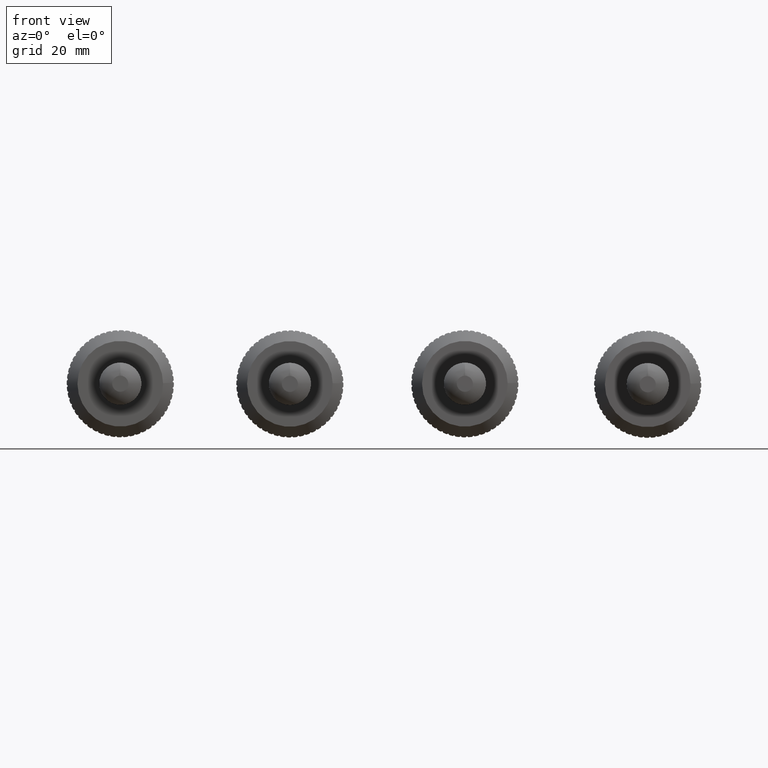
[diagram: clean part render]
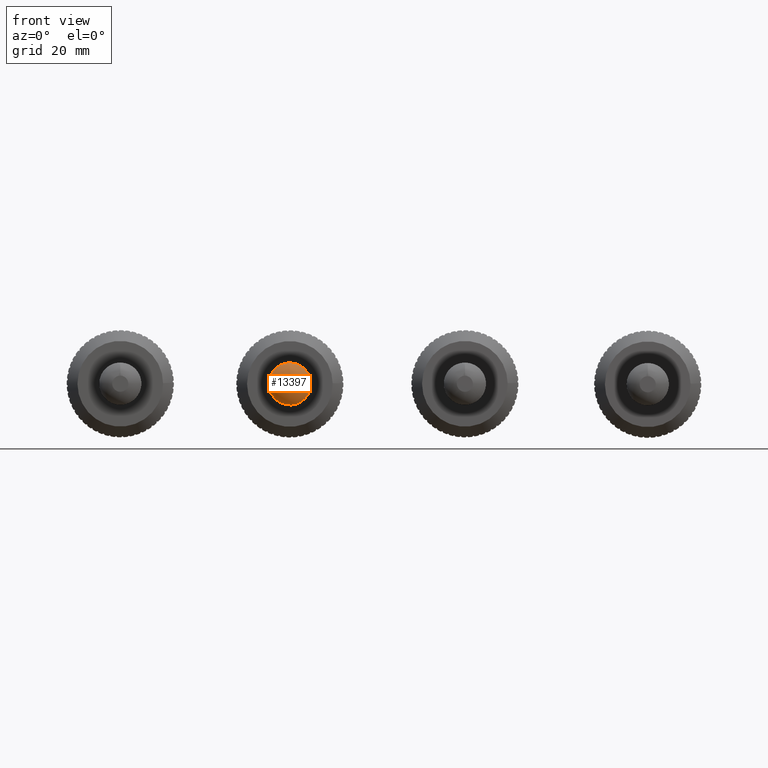
[diagram: same view with one face highlighted and labeled with its STEP entity id]
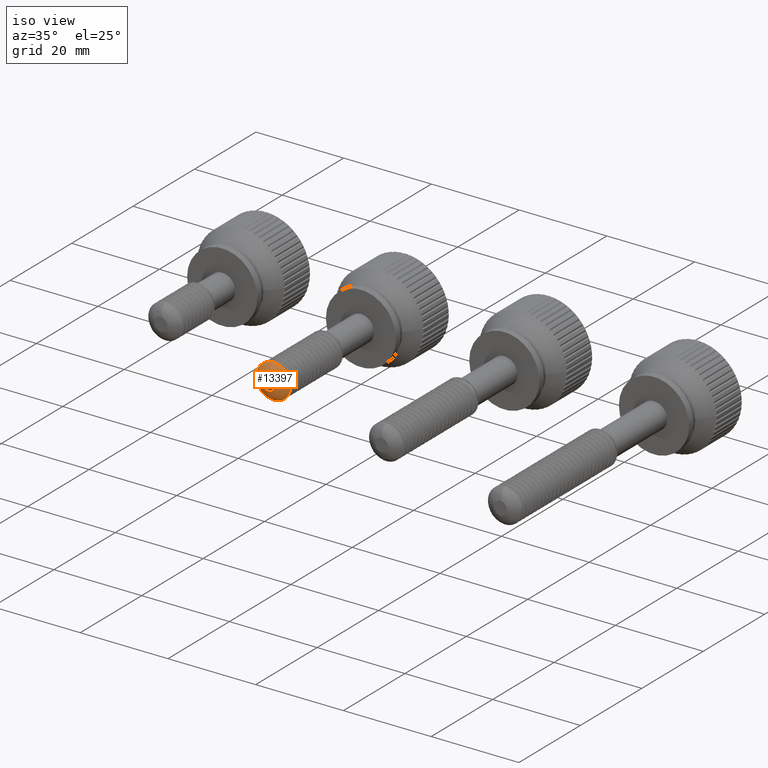
[diagram: same view with one face highlighted and labeled with its STEP entity id]
A machine part, front view. The second image highlights one B-rep face of the part: STEP entity #13397.
A second angle (iso view) of the same face is appended — the face is thin or edge-on in the first view.
In plain terms, the highlighted face is a freeform B-spline surface patch.
Its self-contained STEP definition (entity closure, byte-faithful):
#51=(
BOUNDED_SURFACE()
B_SPLINE_SURFACE(2,2,((#30880,#30881,#30882,#30883,#30884,#30885,#30886,
#30887,#30888),(#30889,#30890,#30891,#30892,#30893,#30894,#30895,#30896,
#30897),(#30898,#30899,#30900,#30901,#30902,#30903,#30904,#30905,#30906)),
 .UNSPECIFIED.,.F.,.T.,.F.)
B_SPLINE_SURFACE_WITH_KNOTS((3,3),(3,2,2,2,3),(0.424521424949027,1.57079632679493),
(-3.14159265358979,-1.5707963267949,0.,1.5707963267949,3.14159265358979),
 .UNSPECIFIED.)
GEOMETRIC_REPRESENTATION_ITEM()
RATIONAL_B_SPLINE_SURFACE(((1.,0.707106781186548,1.,0.707106781186548,1.,
0.707106781186548,1.,0.707106781186548,1.),(0.84020376520645,0.59411377995595,
0.84020376520645,0.59411377995595,0.84020376520645,0.59411377995595,0.84020376520645,
0.59411377995595,0.84020376520645),(1.,0.707106781186548,1.,0.707106781186548,
1.,0.707106781186548,1.,0.707106781186548,1.)))
REPRESENTATION_ITEM('')
SURFACE()
);
#1759=(
BOUNDED_CURVE()
B_SPLINE_CURVE(2,(#30908,#30909,#30910),.UNSPECIFIED.,.F.,.F.)
B_SPLINE_CURVE_WITH_KNOTS((3,3),(0.424521424949027,1.57079632679493),
 .UNSPECIFIED.)
CURVE()
GEOMETRIC_REPRESENTATION_ITEM()
RATIONAL_B_SPLINE_CURVE((1.,0.84020376520645,1.))
REPRESENTATION_ITEM('')
);
#2961=FACE_OUTER_BOUND('',#3661,.T.);
#3661=EDGE_LOOP('',(#10565,#10566,#10567,#10568,#10569,#10570,#10571));
#4145=CIRCLE('',#14041,3.933);
#4148=CIRCLE('',#14046,3.933);
#4149=CIRCLE('',#14047,3.933);
#4260=CIRCLE('',#14320,1.50000000000001);
#4584=B_SPLINE_CURVE_WITH_KNOTS('',3,(#29068,#29069,#29070,#29071),
 .UNSPECIFIED.,.F.,.F.,(4,4),(-0.0802997055663614,0.),.UNSPECIFIED.);
#5124=VERTEX_POINT('',#23252);
#5125=VERTEX_POINT('',#23269);
#5157=VERTEX_POINT('',#28622);
#5158=VERTEX_POINT('',#28623);
#5478=VERTEX_POINT('',#30907);
#6819=EDGE_CURVE('',#5125,#5124,#4145,.T.);
#6852=EDGE_CURVE('',#5157,#5158,#4148,.T.);
#6856=EDGE_CURVE('',#5158,#5125,#4149,.T.);
#6857=EDGE_CURVE('',#5124,#5157,#4584,.T.);
#7335=EDGE_CURVE('',#5158,#5478,#1759,.T.);
#7336=EDGE_CURVE('',#5478,#5478,#4260,.T.);
#10565=ORIENTED_EDGE('',*,*,#6852,.T.);
#10566=ORIENTED_EDGE('',*,*,#7335,.T.);
#10567=ORIENTED_EDGE('',*,*,#7336,.F.);
#10568=ORIENTED_EDGE('',*,*,#7335,.F.);
#10569=ORIENTED_EDGE('',*,*,#6856,.T.);
#10570=ORIENTED_EDGE('',*,*,#6819,.T.);
#10571=ORIENTED_EDGE('',*,*,#6857,.T.);
#13397=ADVANCED_FACE('',(#2961),#51,.F.);
#14041=AXIS2_PLACEMENT_3D('',#23270,#15645,#15646);
#14046=AXIS2_PLACEMENT_3D('',#28624,#15655,#15656);
#14047=AXIS2_PLACEMENT_3D('',#28707,#15657,#15658);
#14320=AXIS2_PLACEMENT_3D('',#30911,#16359,#16360);
#15645=DIRECTION('center_axis',(0.,-1.,0.));
#15646=DIRECTION('ref_axis',(1.,0.,0.));
#15655=DIRECTION('center_axis',(0.,-1.,0.));
#15656=DIRECTION('ref_axis',(1.,0.,0.));
#15657=DIRECTION('center_axis',(0.,-1.,0.));
#15658=DIRECTION('ref_axis',(1.,0.,0.));
#16359=DIRECTION('center_axis',(0.,-1.,0.));
#16360=DIRECTION('ref_axis',(1.,0.,0.));
#23252=CARTESIAN_POINT('',(2.02769757768162,-28.4297001842973,-3.37000467855226));
#23269=CARTESIAN_POINT('',(-1.45883911188734,-28.4297322401385,-3.65243445466551));
#23270=CARTESIAN_POINT('Origin',(-1.25984292442816E-15,-28.4297322401385,
-1.59594559789866E-14));
#28622=CARTESIAN_POINT('',(2.09607645031008,-28.4297322401385,-3.32790512401655));
#28623=CARTESIAN_POINT('',(-3.58717020998745E-15,-28.4297322401385,3.93299999999999));
#28624=CARTESIAN_POINT('Origin',(-1.25984292442816E-15,-28.4297322401385,
-1.59594559789866E-14));
#28707=CARTESIAN_POINT('Origin',(-1.25984292442816E-15,-28.4297322401385,
-1.59594559789866E-14));
#29068=CARTESIAN_POINT('Ctrl Pts',(2.02769757768162,-28.4297322401385,-3.37000467855226));
#29069=CARTESIAN_POINT('Ctrl Pts',(2.05049053522444,-28.4297322401385,-3.35597149370702));
#29070=CARTESIAN_POINT('Ctrl Pts',(2.07328349276726,-28.4297322401385,-3.34193830886178));
#29071=CARTESIAN_POINT('Ctrl Pts',(2.09607645031008,-28.4297322401385,-3.32790512401655));
#30880=CARTESIAN_POINT('Ctrl Pts',(-3.58717020998745E-15,-28.4297322401385,
3.93299999999999));
#30881=CARTESIAN_POINT('Ctrl Pts',(-3.93300000000007,-28.4297322401385,
3.93299999999999));
#30882=CARTESIAN_POINT('Ctrl Pts',(-3.93300000000007,-28.4297322401384,
-7.53866330113579E-14));
#30883=CARTESIAN_POINT('Ctrl Pts',(-3.93300000000007,-28.4297322401383,
-3.93300000000014));
#30884=CARTESIAN_POINT('Ctrl Pts',(-3.58717020998746E-15,-28.4297322401383,
-3.93300000000014));
#30885=CARTESIAN_POINT('Ctrl Pts',(3.93300000000006,-28.4297322401383,-3.93300000000014));
#30886=CARTESIAN_POINT('Ctrl Pts',(3.93300000000006,-28.4297322401384,-7.53866330113581E-14));
#30887=CARTESIAN_POINT('Ctrl Pts',(3.93300000000006,-28.4297322401385,3.93299999999999));
#30888=CARTESIAN_POINT('Ctrl Pts',(-3.58717020998745E-15,-28.4297322401385,
3.93299999999999));
#30889=CARTESIAN_POINT('Ctrl Pts',(-5.16712373942157E-15,-30.0000000000001,
3.22322849109333));
#30890=CARTESIAN_POINT('Ctrl Pts',(-3.22322849109344,-30.0000000000001,
3.22322849109333));
#30891=CARTESIAN_POINT('Ctrl Pts',(-3.22322849109344,-30.0000000000001,
-1.10008022959561E-13));
#30892=CARTESIAN_POINT('Ctrl Pts',(-3.22322849109344,-30.,-3.22322849109355));
#30893=CARTESIAN_POINT('Ctrl Pts',(-5.16712373942157E-15,-30.,-3.22322849109355));
#30894=CARTESIAN_POINT('Ctrl Pts',(3.22322849109343,-30.,-3.22322849109355));
#30895=CARTESIAN_POINT('Ctrl Pts',(3.22322849109343,-30.0000000000001,-1.10008022959561E-13));
#30896=CARTESIAN_POINT('Ctrl Pts',(3.22322849109343,-30.0000000000001,3.22322849109333));
#30897=CARTESIAN_POINT('Ctrl Pts',(-5.16712373942157E-15,-30.0000000000001,
3.22322849109333));
#30898=CARTESIAN_POINT('Ctrl Pts',(-5.16712373942151E-15,-30.,1.49999999999979));
#30899=CARTESIAN_POINT('Ctrl Pts',(-1.4999999999999,-30.,1.49999999999979));
#30900=CARTESIAN_POINT('Ctrl Pts',(-1.4999999999999,-30.,-1.10008022959559E-13));
#30901=CARTESIAN_POINT('Ctrl Pts',(-1.4999999999999,-30.,-1.50000000000001));
#30902=CARTESIAN_POINT('Ctrl Pts',(-5.16712373942151E-15,-30.,-1.50000000000001));
#30903=CARTESIAN_POINT('Ctrl Pts',(1.49999999999989,-30.,-1.50000000000001));
#30904=CARTESIAN_POINT('Ctrl Pts',(1.49999999999989,-30.,-1.10008022959559E-13));
#30905=CARTESIAN_POINT('Ctrl Pts',(1.49999999999989,-30.,1.49999999999979));
#30906=CARTESIAN_POINT('Ctrl Pts',(-5.16712373942151E-15,-30.,1.49999999999979));
#30907=CARTESIAN_POINT('',(-1.83697019872104E-16,-30.,1.50000000000001));
#30908=CARTESIAN_POINT('Ctrl Pts',(-3.58717020998745E-15,-28.4297322401385,
3.93299999999999));
#30909=CARTESIAN_POINT('Ctrl Pts',(-5.16712373942157E-15,-30.0000000000001,
3.22322849109333));
#30910=CARTESIAN_POINT('Ctrl Pts',(-5.16712373942151E-15,-30.,1.49999999999979));
#30911=CARTESIAN_POINT('Origin',(0.,-30.,0.));